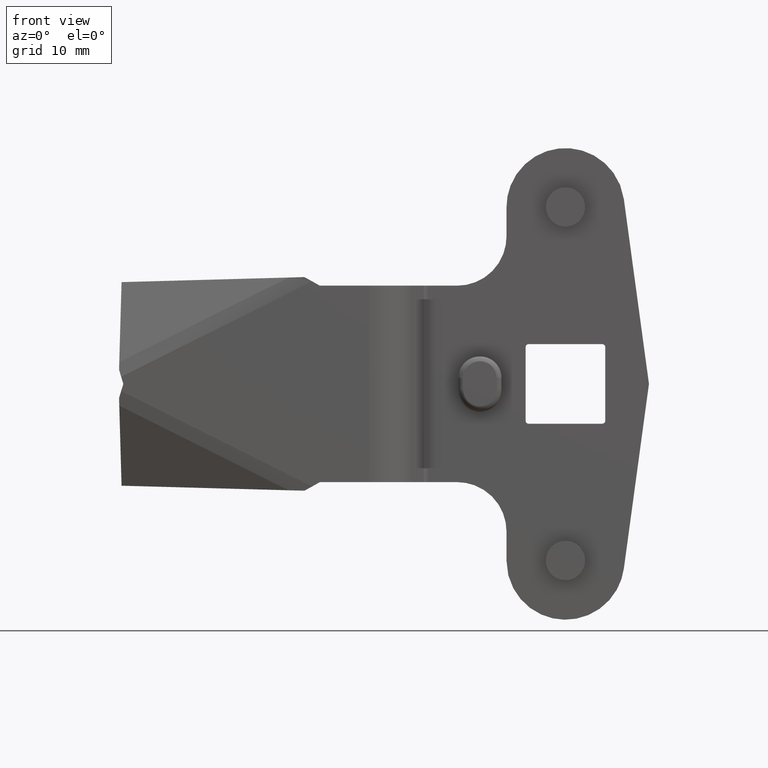
[diagram: clean part render]
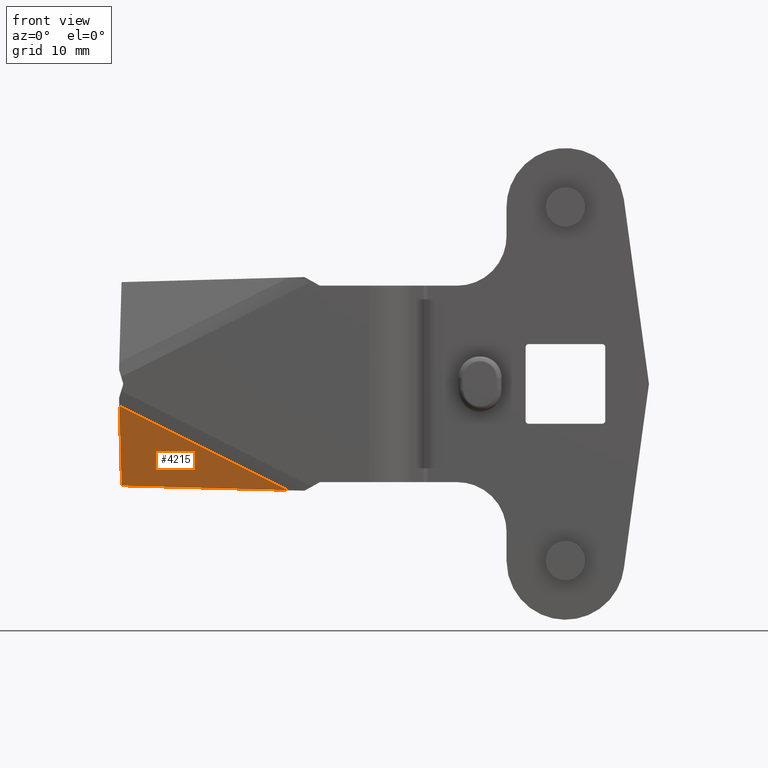
[diagram: same view with one face highlighted and labeled with its STEP entity id]
A machine part, front view. The second image highlights one B-rep face of the part: STEP entity #4215.
In plain terms, the highlighted face is a freeform B-spline surface patch.
Its self-contained STEP definition (entity closure, byte-faithful):
#3678=CARTESIAN_POINT('',(-45.413576456150601,-3.736818087284035,-2.217426301471860));
#3679=VERTEX_POINT('',#3678);
#3695=CARTESIAN_POINT('',(-28.194130834100950,-3.736818087284035,-10.827149112497500));
#3696=VERTEX_POINT('',#3695);
#3697=CARTESIAN_POINT('',(-28.194130834100950,-3.736818087284035,-10.827149112497500));
#3698=CARTESIAN_POINT('',(-45.413576456150601,-3.736818087284035,-2.217426301471860));
#3699=QUASI_UNIFORM_CURVE('',1,(#3697,#3698),.UNSPECIFIED.,.F.,.U.);
#3700=EDGE_CURVE('',#3696,#3679,#3699,.T.);
#3756=CARTESIAN_POINT('',(-45.180507131172313,-0.995191115934669,-10.361010462547100));
#3757=VERTEX_POINT('',#3756);
#3758=CARTESIAN_POINT('',(-45.180507131172313,-0.995191115934669,-10.361010462547100));
#3759=CARTESIAN_POINT('',(-28.194130834100950,-3.736818087284035,-10.827149112497500));
#3760=QUASI_UNIFORM_CURVE('',1,(#3758,#3759),.UNSPECIFIED.,.F.,.U.);
#3761=EDGE_CURVE('',#3757,#3696,#3760,.T.);
#3887=CARTESIAN_POINT('',(-45.413576456150601,-3.736818087284035,-2.217426301471860));
#3888=CARTESIAN_POINT('',(-45.180507131172313,-0.995191115934669,-10.361010462547100));
#3889=QUASI_UNIFORM_CURVE('',1,(#3887,#3888),.UNSPECIFIED.,.F.,.U.);
#3890=EDGE_CURVE('',#3679,#3757,#3889,.T.);
#4205=CARTESIAN_POINT('',(-46.024460233531627,-0.715219367082584,-10.758746844500470));
#4206=CARTESIAN_POINT('',(-27.334019018473999,-3.736818070083612,-11.257205070671120));
#4207=CARTESIAN_POINT('',(-46.273689333247283,-3.736817907992450,-1.787370387860846));
#4208=CARTESIAN_POINT('',(-27.583248118189658,-6.758416610993477,-2.285828614031501));
#4209=B_SPLINE_SURFACE_WITH_KNOTS('',1,1,((#4205,#4207),(#4206,#4208)),.UNSPECIFIED.,.F.,.F.,.U.,(2,2),(2,2),(0.0,18.939670328142981),(0.0,9.469834656070894),.UNSPECIFIED.);
#4210=ORIENTED_EDGE('',*,*,#3761,.T.);
#4211=ORIENTED_EDGE('',*,*,#3700,.T.);
#4212=ORIENTED_EDGE('',*,*,#3890,.T.);
#4213=EDGE_LOOP('',(#4210,#4211,#4212));
#4214=FACE_OUTER_BOUND('',#4213,.T.);
#4215=ADVANCED_FACE('',(#4214),#4209,.T.);